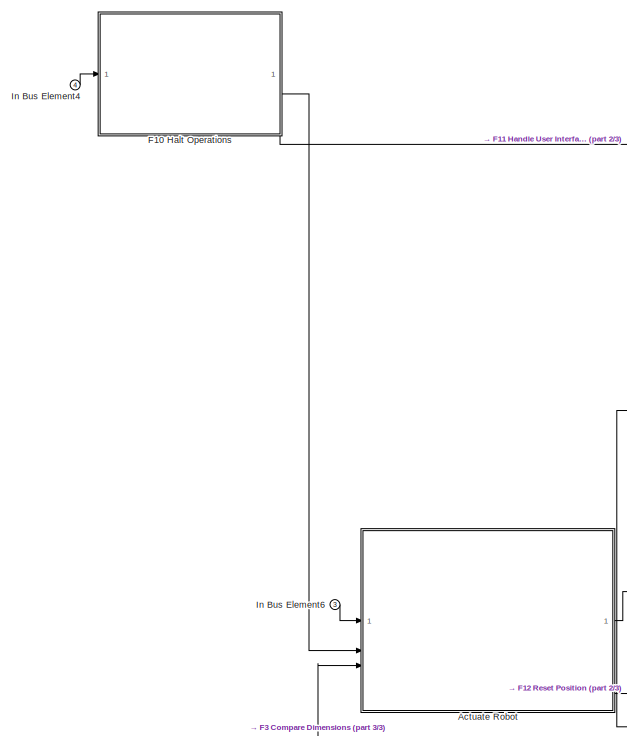
[diagram: root canvas - part 1/3, middle left region]
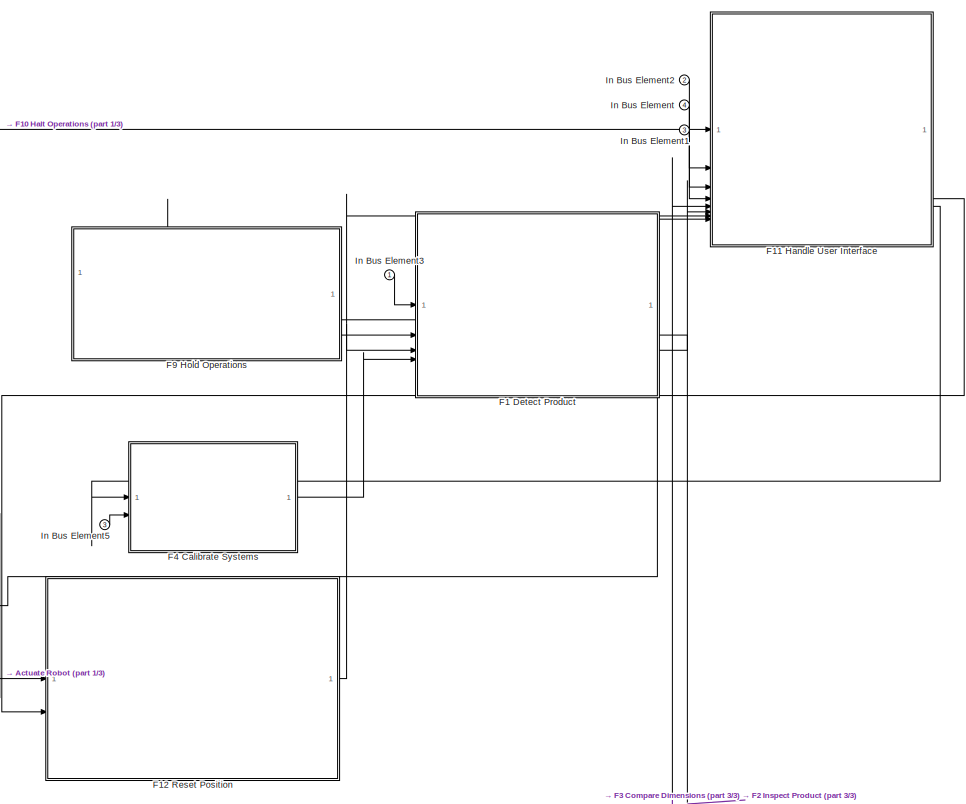
[diagram: root canvas - part 2/3, middle right region]
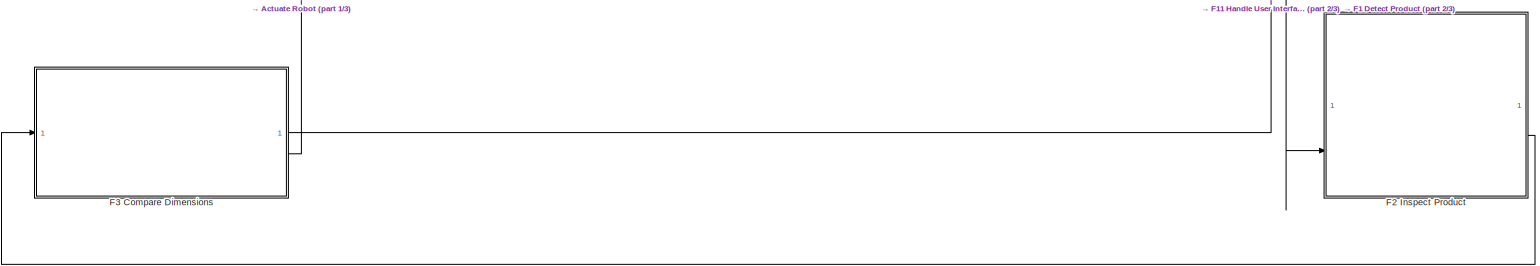
[diagram: root canvas - part 3/3, full width, bottom band]
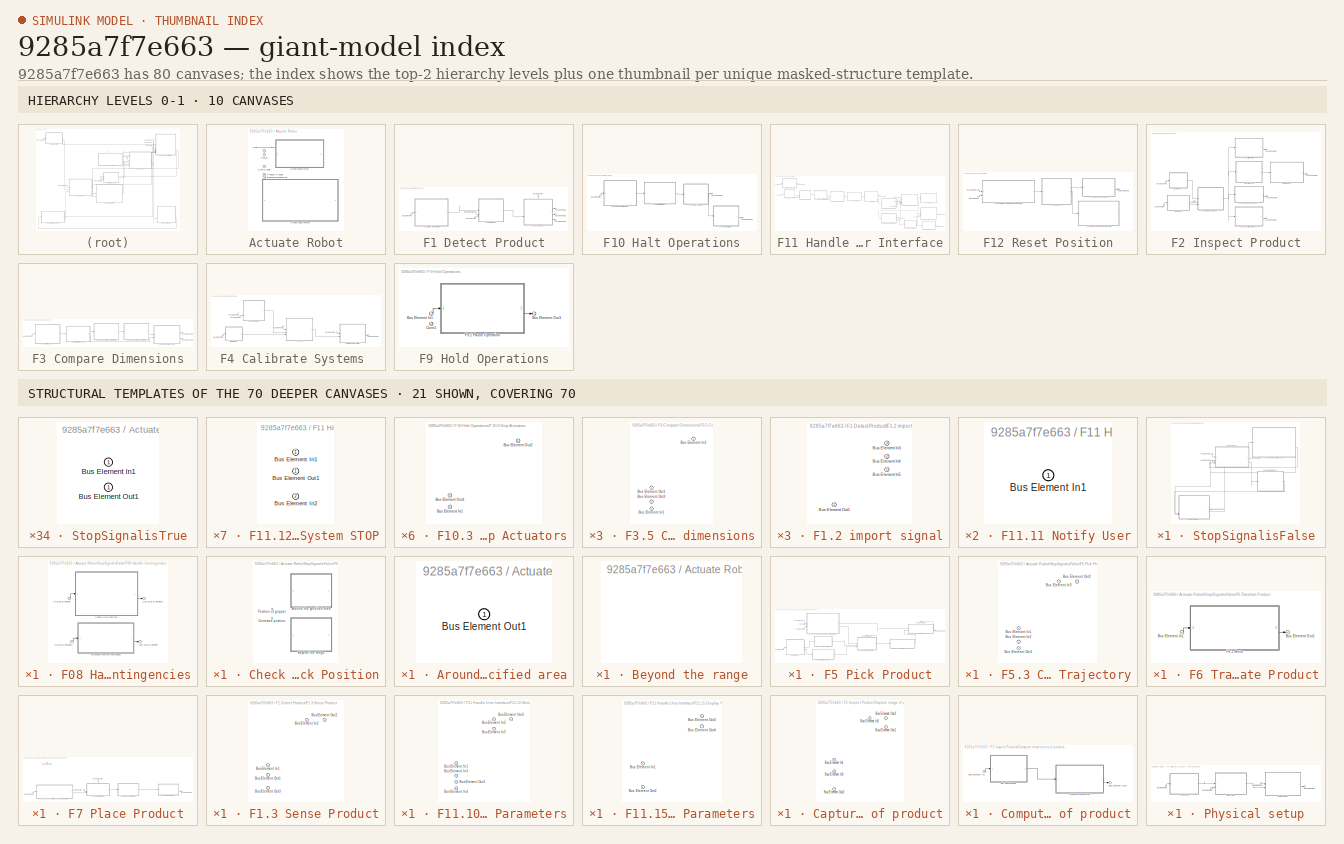
[diagram: thumbnail index - top-2 hierarchy levels (10 canvases) + 21 structural-template representatives of the remaining 70 canvases]
MODEL slx_9285a7f7e663
KIND model
CONFIG AbsTol = auto
CONFIG EnableMultiTasking = off
CONFIG FixedStep = auto
CONFIG MaxStep = auto
CONFIG MinStep = auto
CONFIG RelTol = 1e-3
CONFIG SampleTimeConstraint = Unconstrained
CONFIG SolverName = VariableStepAuto
CONFIG StartTime = 0.0
CONFIG StopTime = 10.0
BLOCK [SubSystem] Actuate Robot
  LabelModeActiveChoice = false
  PortSchema = {"entries":[{"content":{"headerSize":38,"margin":15,"minimumSpacing":25,"sides":[{"content":{"connectorIds":["In1","In2","In3"]},"type":"ConnectorPlacement.EquallySpacedRectSide","uuid":"801652fd-f6d1-4274-af0e-cb86f9305aea"},{"content":{"connectorIds":["Out1","Out2"],"side":"RIGHT"},"type":"ConnectorPlacement.EquallySpacedRectSide","uuid":"95203280-2c96-4067-b57a-d6395a07757b"},{"content":{"conne...<+307ch>
  Variant = on
  VariantControlMode = label
BLOCK [Inport] Actuate Robot/BeginpickOperation
  Port = 3
BLOCK [Outport] Actuate Robot/NotifySTOPStatus
BLOCK [Inport] Actuate Robot/Power
BLOCK [Outport] Actuate Robot/Product Placed
  Port = 2
BLOCK [Inport] Actuate Robot/Stop Signal
  Port = 2
BLOCK [SubSystem] Actuate Robot/StopSignalisFalse
  PortSchema = {"entries":[{"content":{"headerSize":26,"margin":15,"minimumSpacing":25,"sides":[{"content":{"connectorIds":["In1","In2"]},"type":"ConnectorPlacement.EquallySpacedRectSide","uuid":"48af5bc1-3520-4798-93f0-e999f4a2b359"},{"content":{"connectorIds":["Out1"],"side":"RIGHT"},"type":"ConnectorPlacement.EquallySpacedRectSide","uuid":"b080505c-f688-49a6-aa0b-291a70fb9613"},{"content":{"connectorIds":[],"...<+294ch>
  VariantControl = false
BLOCK [Inport] Actuate Robot/StopSignalisFalse/Bus Element In1
  Port = 2
BLOCK [Inport] Actuate Robot/StopSignalisFalse/Bus Element In2
BLOCK [Outport] Actuate Robot/StopSignalisFalse/Bus Element Out1
BLOCK [SubSystem] Actuate Robot/StopSignalisFalse/F08 Handle Contingencies
  PortSchema = {"entries":[{"content":{"headerSize":26,"margin":15,"minimumSpacing":25,"sides":[{"content":{"connectorIds":["In1","In2"]},"type":"ConnectorPlacement.EquallySpacedRectSide","uuid":"1c117138-a6d4-4ec0-b7b8-6d1428745998"},{"content":{"connectorIds":["Out1","Out2"],"side":"RIGHT"},"type":"ConnectorPlacement.EquallySpacedRectSide","uuid":"426d6ceb-18a6-42d8-9bd7-8fe69cb751f0"},{"content":{"connectorId...<+301ch>
BLOCK [SubSystem] Actuate Robot/StopSignalisFalse/F08 Handle Contingencies/Check Pick Position
  LabelModeActiveChoice = true
  PortSchema = {"entries":[{"content":{"headerSize":38,"margin":15,"minimumSpacing":25,"sides":[{"content":{"connectorIds":["In1"]},"type":"ConnectorPlacement.EquallySpacedRectSide","uuid":"82248304-a162-48ca-a47b-1ca98baf0c4b"},{"content":{"connectorIds":["Out1"],"side":"RIGHT"},"type":"ConnectorPlacement.EquallySpacedRectSide","uuid":"4a71fcf9-75ca-4fc2-a495-265b9c18be6e"},{"content":{"connectorIds":[],"side":...<+288ch>
  Variant = on
  VariantControlMode = label
BLOCK [SubSystem] Actuate Robot/StopSignalisFalse/F08 Handle Contingencies/Check Pick Position/Around the specified area
  PortSchema = {"entries":[{"content":{"headerSize":26,"margin":15,"minimumSpacing":25,"sides":[{"content":{"connectorIds":[]},"type":"ConnectorPlacement.EquallySpacedRectSide","uuid":"7245304e-b65d-462b-853e-3a80a6fffb1c"},{"content":{"connectorIds":["Out1"],"side":"RIGHT"},"type":"ConnectorPlacement.EquallySpacedRectSide","uuid":"9267bc47-a16a-4902-a507-692f8de66c88"},{"content":{"connectorIds":[],"side":"TOP"...<+283ch>
  VariantControl = true
BLOCK [Outport] Actuate Robot/StopSignalisFalse/F08 Handle Contingencies/Check Pick Position/Around the specified area/Bus Element Out1
BLOCK [SubSystem] Actuate Robot/StopSignalisFalse/F08 Handle Contingencies/Check Pick Position/Beyond the range
  PortSchema = {"entries":[{"content":{"headerSize":26,"margin":15,"minimumSpacing":25,"sides":[{"content":{"connectorIds":[]},"type":"ConnectorPlacement.EquallySpacedRectSide","uuid":"cfa9a458-ccb1-4b4b-9223-cdb6aaef5fc4"},{"content":{"connectorIds":[],"side":"RIGHT"},"type":"ConnectorPlacement.EquallySpacedRectSide","uuid":"f9e6f688-270f-46a5-8c07-32c6831cf3d3"},{"content":{"connectorIds":[],"side":"TOP"},"typ...<+277ch>
  VariantControl = Choice
BLOCK [Outport] Actuate Robot/StopSignalisFalse/F08 Handle Contingencies/Check Pick Position/Corrected position
BLOCK [Inport] Actuate Robot/StopSignalisFalse/F08 Handle Contingencies/Check Pick Position/Position of gripper
BLOCK [SubSystem] Actuate Robot/StopSignalisFalse/F08 Handle Contingencies/F8.1Weak force on the product
  PortSchema = {"entries":[{"content":{"headerSize":26,"margin":15,"minimumSpacing":25,"sides":[{"content":{"connectorIds":["In1"]},"type":"ConnectorPlacement.EquallySpacedRectSide","uuid":"cfa9a458-ccb1-4b4b-9223-cdb6aaef5fc4"},{"content":{"connectorIds":["Out1"],"side":"RIGHT"},"type":"ConnectorPlacement.EquallySpacedRectSide","uuid":"f9e6f688-270f-46a5-8c07-32c6831cf3d3"},{"content":{"connectorIds":[],"side":...<+288ch>
BLOCK [Inport] Actuate Robot/StopSignalisFalse/F08 Handle Contingencies/F8.1Weak force on the product/Bus Element In1
BLOCK [Outport] Actuate Robot/StopSignalisFalse/F08 Handle Contingencies/F8.1Weak force on the product/Bus Element Out1
BLOCK [Inport] Actuate Robot/StopSignalisFalse/F08 Handle Contingencies/In Bus Element
BLOCK [Inport] Actuate Robot/StopSignalisFalse/F08 Handle Contingencies/In Bus Element1
  Port = 2
BLOCK [Outport] Actuate Robot/StopSignalisFalse/F08 Handle Contingencies/Out Bus Element
  Port = 2
BLOCK [Outport] Actuate Robot/StopSignalisFalse/F08 Handle Contingencies/Out Bus Element1
BLOCK [SubSystem] Actuate Robot/StopSignalisFalse/F5 Pick Product
  PortSchema = {"entries":[{"content":{"headerSize":26,"margin":15,"minimumSpacing":25,"sides":[{"content":{"connectorIds":["In1","In2","In3","In4"]},"type":"ConnectorPlacement.EquallySpacedRectSide","uuid":"ce520cb7-ac6b-49f5-959a-43d0066e6af8"},{"content":{"connectorIds":["Out3"],"side":"RIGHT"},"type":"ConnectorPlacement.EquallySpacedRectSide","uuid":"785c5fb5-eec3-4a9f-be3c-47cdb1865e9b"},{"content":{"connec...<+319ch>
BLOCK [SubSystem] Actuate Robot/StopSignalisFalse/F5 Pick Product/Begin Task
  PortSchema = {"entries":[{"content":{"headerSize":26,"margin":15,"minimumSpacing":25,"sides":[{"content":{"connectorIds":["In1"]},"type":"ConnectorPlacement.EquallySpacedRectSide","uuid":"ae240f5f-39ed-41a3-b9a8-bf2f33b986be"},{"content":{"connectorIds":["Out1","Out2"],"side":"RIGHT"},"type":"ConnectorPlacement.EquallySpacedRectSide","uuid":"44ba199a-fd12-4621-8565-f3f1adedec4a"},{"content":{"connectorIds":[],...<+295ch>
BLOCK [Inport] Actuate Robot/StopSignalisFalse/F5 Pick Product/Begin Task/Bus Element In1
BLOCK [Outport] Actuate Robot/StopSignalisFalse/F5 Pick Product/Begin Task/Bus Element Out1
BLOCK [Outport] Actuate Robot/StopSignalisFalse/F5 Pick Product/Begin Task/Bus Element Out2
  Port = 2
BLOCK [Inport] Actuate Robot/StopSignalisFalse/F5 Pick Product/Bus Element In1
BLOCK [Inport] Actuate Robot/StopSignalisFalse/F5 Pick Product/Bus Element In2
  Port = 2
BLOCK [Inport] Actuate Robot/StopSignalisFalse/F5 Pick Product/Bus Element In3
  Port = 4
BLOCK [Inport] Actuate Robot/StopSignalisFalse/F5 Pick Product/Bus Element In4
  Port = 3
BLOCK [Outport] Actuate Robot/StopSignalisFalse/F5 Pick Product/Bus Element Out1
  Port = 3
BLOCK [Outport] Actuate Robot/StopSignalisFalse/F5 Pick Product/Bus Element Out3
BLOCK [Outport] Actuate Robot/StopSignalisFalse/F5 Pick Product/Bus Element Out4
  Port = 2
BLOCK [SubSystem] Actuate Robot/StopSignalisFalse/F5 Pick Product/F5.1 Accept Coordinates
  PortSchema = {"entries":[{"content":{"headerSize":26,"margin":15,"minimumSpacing":25,"sides":[{"content":{"connectorIds":["In1"]},"type":"ConnectorPlacement.EquallySpacedRectSide","uuid":"ce520cb7-ac6b-49f5-959a-43d0066e6af8"},{"content":{"connectorIds":["Out1"],"side":"RIGHT"},"type":"ConnectorPlacement.EquallySpacedRectSide","uuid":"785c5fb5-eec3-4a9f-be3c-47cdb1865e9b"},{"content":{"connectorIds":[],"side":...<+288ch>  <repeated x8 — deduplicated; at blocks: F5.1 Accept Coordinates, F5.2 Import Orientation of Product, F5.5 Move the Gripper towards Product, F6 Translate Product, F6.1 Move, F7.1 Check and Verify force and position of Gri…, F7.3 Release the Gripper, F7.4 Raise the Gripper>
BLOCK [Inport] Actuate Robot/StopSignalisFalse/F5 Pick Product/F5.1 Accept Coordinates/Bus Element In1
BLOCK [Outport] Actuate Robot/StopSignalisFalse/F5 Pick Product/F5.1 Accept Coordinates/Bus Element Out1
BLOCK [SubSystem] Actuate Robot/StopSignalisFalse/F5 Pick Product/F5.2 Import Orientation of Product
BLOCK [Inport] Actuate Robot/StopSignalisFalse/F5 Pick Product/F5.2 Import Orientation of Product/Bus Element In1
BLOCK [Outport] Actuate Robot/StopSignalisFalse/F5 Pick Product/F5.2 Import Orientation of Product/Bus Element Out1
BLOCK [SubSystem] Actuate Robot/StopSignalisFalse/F5 Pick Product/F5.3 Compute Trajectory
  PortSchema = {"entries":[{"content":{"headerSize":26,"margin":15,"minimumSpacing":25,"sides":[{"content":{"connectorIds":["In1","In2","In3"]},"type":"ConnectorPlacement.EquallySpacedRectSide","uuid":"ce520cb7-ac6b-49f5-959a-43d0066e6af8"},{"content":{"connectorIds":["Out2"],"side":"RIGHT"},"type":"ConnectorPlacement.EquallySpacedRectSide","uuid":"785c5fb5-eec3-4a9f-be3c-47cdb1865e9b"},{"content":{"connectorIds...<+306ch>
BLOCK [Inport] Actuate Robot/StopSignalisFalse/F5 Pick Product/F5.3 Compute Trajectory/Bus Element In1
  Port = 2
BLOCK [Inport] Actuate Robot/StopSignalisFalse/F5 Pick Product/F5.3 Compute Trajectory/Bus Element In2
  Port = 3
BLOCK [Inport] Actuate Robot/StopSignalisFalse/F5 Pick Product/F5.3 Compute Trajectory/Bus Element In3
BLOCK [Outport] Actuate Robot/StopSignalisFalse/F5 Pick Product/F5.3 Compute Trajectory/Bus Element Out1
  Port = 2
BLOCK [Outport] Actuate Robot/StopSignalisFalse/F5 Pick Product/F5.3 Compute Trajectory/Bus Element Out2
BLOCK [SubSystem] Actuate Robot/StopSignalisFalse/F5 Pick Product/F5.4 Check and Verify Force and Position of Gripper
  PortSchema = {"entries":[{"content":{"headerSize":26,"margin":15,"minimumSpacing":25,"sides":[{"content":{"connectorIds":["In1","In2"]},"type":"ConnectorPlacement.EquallySpacedRectSide","uuid":"ce520cb7-ac6b-49f5-959a-43d0066e6af8"},{"content":{"connectorIds":["Out1","Out2"],"side":"RIGHT"},"type":"ConnectorPlacement.EquallySpacedRectSide","uuid":"785c5fb5-eec3-4a9f-be3c-47cdb1865e9b"},{"content":{"connectorId...<+445ch>
BLOCK [Inport] Actuate Robot/StopSignalisFalse/F5 Pick Product/F5.4 Check and Verify Force and Position of Gripper/Bus Element In1
BLOCK [Inport] Actuate Robot/StopSignalisFalse/F5 Pick Product/F5.4 Check and Verify Force and Position of Gripper/Bus Element In2
  Port = 2
BLOCK [Outport] Actuate Robot/StopSignalisFalse/F5 Pick Product/F5.4 Check and Verify Force and Position of Gripper/Bus Element Out1
  Port = 2
BLOCK [Outport] Actuate Robot/StopSignalisFalse/F5 Pick Product/F5.4 Check and Verify Force and Position of Gripper/Bus Element Out2
BLOCK [SubSystem] Actuate Robot/StopSignalisFalse/F5 Pick Product/F5.5 Move the Gripper towards Product
BLOCK [Inport] Actuate Robot/StopSignalisFalse/F5 Pick Product/F5.5 Move the Gripper towards Product/Bus Element In1
BLOCK [Outport] Actuate Robot/StopSignalisFalse/F5 Pick Product/F5.5 Move the Gripper towards Product/Bus Element Out1
BLOCK [SubSystem] Actuate Robot/StopSignalisFalse/F5 Pick Product/F5.6 Activate Gripper
  PortSchema = {"entries":[{"content":{"headerSize":26,"margin":15,"minimumSpacing":25,"sides":[{"content":{"connectorIds":["In1","In2"]},"type":"ConnectorPlacement.EquallySpacedRectSide","uuid":"ce520cb7-ac6b-49f5-959a-43d0066e6af8"},{"content":{"connectorIds":["Out2"],"side":"RIGHT"},"type":"ConnectorPlacement.EquallySpacedRectSide","uuid":"785c5fb5-eec3-4a9f-be3c-47cdb1865e9b"},{"content":{"connectorIds":["Ou...<+300ch>
BLOCK [Inport] Actuate Robot/StopSignalisFalse/F5 Pick Product/F5.6 Activate Gripper/Bus Element In1
  Port = 2
BLOCK [Inport] Actuate Robot/StopSignalisFalse/F5 Pick Product/F5.6 Activate Gripper/Bus Element In2
BLOCK [Outport] Actuate Robot/StopSignalisFalse/F5 Pick Product/F5.6 Activate Gripper/Bus Element Out1
  Port = 2
BLOCK [Outport] Actuate Robot/StopSignalisFalse/F5 Pick Product/F5.6 Activate Gripper/Bus Element Out2
BLOCK [SubSystem] Actuate Robot/StopSignalisFalse/F6 Translate Product
BLOCK [Inport] Actuate Robot/StopSignalisFalse/F6 Translate Product/Bus Element In1
BLOCK [Outport] Actuate Robot/StopSignalisFalse/F6 Translate Product/Bus Element Out1
BLOCK [SubSystem] Actuate Robot/StopSignalisFalse/F6 Translate Product/F6.1 Move
BLOCK [Inport] Actuate Robot/StopSignalisFalse/F6 Translate Product/F6.1 Move/Bus Element In1
BLOCK [Outport] Actuate Robot/StopSignalisFalse/F6 Translate Product/F6.1 Move/Bus Element Out1
BLOCK [SubSystem] Actuate Robot/StopSignalisFalse/F7 Place Product
  PortSchema = {"entries":[{"content":{"headerSize":26,"margin":15,"minimumSpacing":25,"sides":[{"content":{"connectorIds":["In4","In3"]},"type":"ConnectorPlacement.EquallySpacedRectSide","uuid":"ce520cb7-ac6b-49f5-959a-43d0066e6af8"},{"content":{"connectorIds":["Out1"],"side":"RIGHT"},"type":"ConnectorPlacement.EquallySpacedRectSide","uuid":"785c5fb5-eec3-4a9f-be3c-47cdb1865e9b"},{"content":{"connectorIds":["In...<+305ch>
BLOCK [Inport] Actuate Robot/StopSignalisFalse/F7 Place Product/Bus Element In1
  Port = 3
BLOCK [Inport] Actuate Robot/StopSignalisFalse/F7 Place Product/Bus Element In2
  Port = 4
BLOCK [Inport] Actuate Robot/StopSignalisFalse/F7 Place Product/Bus Element In3
  Port = 2
BLOCK [Inport] Actuate Robot/StopSignalisFalse/F7 Place Product/Bus Element In4
BLOCK [Outport] Actuate Robot/StopSignalisFalse/F7 Place Product/Bus Element Out1
BLOCK [SubSystem] Actuate Robot/StopSignalisFalse/F7 Place Product/F7.1 Check and Verify force and position of Gripper
BLOCK [Inport] Actuate Robot/StopSignalisFalse/F7 Place Product/F7.1 Check and Verify force and position of Gripper/Bus Element In1
BLOCK [Outport] Actuate Robot/StopSignalisFalse/F7 Place Product/F7.1 Check and Verify force and position of Gripper/Bus Element Out1
BLOCK [SubSystem] Actuate Robot/StopSignalisFalse/F7 Place Product/F7.2 Lower the Gripper
  PortSchema = {"entries":[{"content":{"headerSize":26,"margin":15,"minimumSpacing":25,"sides":[{"content":{"connectorIds":["In2","In3"]},"type":"ConnectorPlacement.EquallySpacedRectSide","uuid":"ce520cb7-ac6b-49f5-959a-43d0066e6af8"},{"content":{"connectorIds":["Out1"],"side":"RIGHT"},"type":"ConnectorPlacement.EquallySpacedRectSide","uuid":"785c5fb5-eec3-4a9f-be3c-47cdb1865e9b"},{"content":{"connectorIds":["In...<+299ch>
BLOCK [Inport] Actuate Robot/StopSignalisFalse/F7 Place Product/F7.2 Lower the Gripper/Bus Element In1
  Port = 2
BLOCK [Inport] Actuate Robot/StopSignalisFalse/F7 Place Product/F7.2 Lower the Gripper/Bus Element In2
  Port = 3
BLOCK [Inport] Actuate Robot/StopSignalisFalse/F7 Place Product/F7.2 Lower the Gripper/Bus Element In3
BLOCK [Outport] Actuate Robot/StopSignalisFalse/F7 Place Product/F7.2 Lower the Gripper/Bus Element Out1
BLOCK [SubSystem] Actuate Robot/StopSignalisFalse/F7 Place Product/F7.3 Release the Gripper
BLOCK [Inport] Actuate Robot/StopSignalisFalse/F7 Place Product/F7.3 Release the Gripper/Bus Element In1
BLOCK [Outport] Actuate Robot/StopSignalisFalse/F7 Place Product/F7.3 Release the Gripper/Bus Element Out1
BLOCK [SubSystem] Actuate Robot/StopSignalisFalse/F7 Place Product/F7.4 Raise the Gripper
BLOCK [Inport] Actuate Robot/StopSignalisFalse/F7 Place Product/F7.4 Raise the Gripper/Bus Element In1
BLOCK [Outport] Actuate Robot/StopSignalisFalse/F7 Place Product/F7.4 Raise the Gripper/Bus Element Out1
BLOCK [SubSystem] Actuate Robot/StopSignalisTrue
  PortSchema = {"entries":[{"content":{"headerSize":26,"margin":15,"minimumSpacing":25,"sides":[{"content":{"connectorIds":["In1"]},"type":"ConnectorPlacement.EquallySpacedRectSide","uuid":"48af5bc1-3520-4798-93f0-e999f4a2b359"},{"content":{"connectorIds":["Out1"],"side":"RIGHT"},"type":"ConnectorPlacement.EquallySpacedRectSide","uuid":"b080505c-f688-49a6-aa0b-291a70fb9613"},{"content":{"connectorIds":[],"side":...<+288ch>
  VariantControl = true
BLOCK [Inport] Actuate Robot/StopSignalisTrue/Bus Element In1
BLOCK [Outport] Actuate Robot/StopSignalisTrue/Bus Element Out1
BLOCK [SubSystem] F1 Detect Product
  PortSchema = {"entries":[{"content":{"headerSize":26,"margin":15,"minimumSpacing":25,"sides":[{"content":{"connectorIds":["In1","In2","In3","In4"]},"type":"ConnectorPlacement.EquallySpacedRectSide","uuid":"0eb90d47-70e1-4803-9acf-c665eca2c33b"},{"content":{"connectorIds":["Out2","Out3"],"side":"RIGHT"},"type":"ConnectorPlacement.EquallySpacedRectSide","uuid":"4ca2a7b5-05ae-49c5-bdeb-54cebcfbfa14"},{"content":{...<+463ch>
BLOCK [Inport] F1 Detect Product/Bus Element In3
  Port = 3
BLOCK [Inport] F1 Detect Product/Bus Element In4
BLOCK [Inport] F1 Detect Product/Bus Element In5
  Port = 2
BLOCK [Inport] F1 Detect Product/Bus Element In7
  Port = 4
BLOCK [Outport] F1 Detect Product/Bus Element Out1
  Port = 3
BLOCK [Outport] F1 Detect Product/Bus Element Out2
  Port = 2
BLOCK [Outport] F1 Detect Product/Bus Element Out3
BLOCK [SubSystem] F1 Detect Product/F1.1 Confirm System Calibration
  PortSchema = {"entries":[{"content":{"headerSize":26,"margin":15,"minimumSpacing":25,"sides":[{"content":{"connectorIds":["In1"]},"type":"ConnectorPlacement.EquallySpacedRectSide","uuid":"ae240f5f-39ed-41a3-b9a8-bf2f33b986be"},{"content":{"connectorIds":["Out1"],"side":"RIGHT"},"type":"ConnectorPlacement.EquallySpacedRectSide","uuid":"44ba199a-fd12-4621-8565-f3f1adedec4a"},{"content":{"connectorIds":[],"side":...<+288ch>
BLOCK [Inport] F1 Detect Product/F1.1 Confirm System Calibration/Bus Element In2
BLOCK [Outport] F1 Detect Product/F1.1 Confirm System Calibration/Bus Element Out1
BLOCK [SubSystem] F1 Detect Product/F1.2 import signal
  PortSchema = {"entries":[{"content":{"headerSize":26,"margin":15,"minimumSpacing":25,"sides":[{"content":{"connectorIds":["In1","In2","In3"]},"type":"ConnectorPlacement.EquallySpacedRectSide","uuid":"ee97644e-c9ff-4946-8a58-fee1d557a4ad"},{"content":{"connectorIds":["Out1"],"side":"RIGHT"},"type":"ConnectorPlacement.EquallySpacedRectSide","uuid":"e20fd496-d0ba-45f7-949d-94f28912a261"},{"content":{"connectorIds...<+300ch>
BLOCK [Inport] F1 Detect Product/F1.2 import signal/Bus Element In3
  Port = 3
BLOCK [Inport] F1 Detect Product/F1.2 import signal/Bus Element In4
  Port = 2
BLOCK [Inport] F1 Detect Product/F1.2 import signal/Bus Element In5
BLOCK [Outport] F1 Detect Product/F1.2 import signal/Bus Element Out1
BLOCK [SubSystem] F1 Detect Product/F1.3 Sense Product
  PortSchema = {"entries":[{"content":{"headerSize":26,"margin":15,"minimumSpacing":25,"sides":[{"content":{"connectorIds":["In2"]},"type":"ConnectorPlacement.EquallySpacedRectSide","uuid":"ee97644e-c9ff-4946-8a58-fee1d557a4ad"},{"content":{"connectorIds":["Out1","Out2","Out3"],"side":"RIGHT"},"type":"ConnectorPlacement.EquallySpacedRectSide","uuid":"e20fd496-d0ba-45f7-949d-94f28912a261"},{"content":{"connectorI...<+307ch>
BLOCK [Inport] F1 Detect Product/F1.3 Sense Product/Bus Element In1
  Port = 2
BLOCK [Inport] F1 Detect Product/F1.3 Sense Product/Bus Element In2
BLOCK [Outport] F1 Detect Product/F1.3 Sense Product/Bus Element Out1
  Port = 2
BLOCK [Outport] F1 Detect Product/F1.3 Sense Product/Bus Element Out2
BLOCK [Outport] F1 Detect Product/F1.3 Sense Product/Bus Element Out3
  Port = 3
BLOCK [SubSystem] F10 Halt Operations
  PortSchema = {"entries":[{"content":{"headerSize":26,"margin":15,"minimumSpacing":25,"sides":[{"content":{"connectorIds":["In1"]},"type":"ConnectorPlacement.EquallySpacedRectSide","uuid":"0eb90d47-70e1-4803-9acf-c665eca2c33b"},{"content":{"connectorIds":["Out1","Out2"],"side":"RIGHT"},"type":"ConnectorPlacement.EquallySpacedRectSide","uuid":"4ca2a7b5-05ae-49c5-bdeb-54cebcfbfa14"},{"content":{"connectorIds":[],...<+295ch>  <repeated x4 — deduplicated; at blocks: F10 Halt Operations, F11.14 Update Activity Log, F11.7 Confirm Login, F3 Compare Dimensions>
BLOCK [Inport] F10 Halt Operations/Bus Element In1
BLOCK [Outport] F10 Halt Operations/Bus Element Out1
  Port = 2
BLOCK [Outport] F10 Halt Operations/Bus Element Out2
BLOCK [SubSystem] F10 Halt Operations/F10.1 Recieve Button Input
  PortSchema = {"entries":[{"content":{"headerSize":26,"margin":15,"minimumSpacing":25,"sides":[{"content":{"connectorIds":["In1"]},"type":"ConnectorPlacement.EquallySpacedRectSide","uuid":"7013333b-bcb0-472a-8b4b-201a684e0f69"},{"content":{"connectorIds":["Out1"],"side":"RIGHT"},"type":"ConnectorPlacement.EquallySpacedRectSide","uuid":"4b4cc890-b976-4837-92a8-5b6c4ad3f659"},{"content":{"connectorIds":[],"side":...<+288ch>  <repeated x6 — deduplicated; at blocks: F10.1 Recieve Button Input, F10.2 Interpret Input, F10.4 Export Signal, F3.1 Import Dimension, F3.3 Request dimensions from DB, F3.4 Recieve Dimensions from DB>
BLOCK [Inport] F10 Halt Operations/F10.1 Recieve Button Input/Bus Element In1
BLOCK [Outport] F10 Halt Operations/F10.1 Recieve Button Input/Bus Element Out1
BLOCK [SubSystem] F10 Halt Operations/F10.2 Interpret Input
BLOCK [Inport] F10 Halt Operations/F10.2 Interpret Input/Bus Element In1
BLOCK [Outport] F10 Halt Operations/F10.2 Interpret Input/Bus Element Out1
BLOCK [SubSystem] F10 Halt Operations/F10.3 Stop Actuators
  PortSchema = {"entries":[{"content":{"headerSize":26,"margin":15,"minimumSpacing":25,"sides":[{"content":{"connectorIds":["In1"]},"type":"ConnectorPlacement.EquallySpacedRectSide","uuid":"7013333b-bcb0-472a-8b4b-201a684e0f69"},{"content":{"connectorIds":["Out2","Out1"],"side":"RIGHT"},"type":"ConnectorPlacement.EquallySpacedRectSide","uuid":"4b4cc890-b976-4837-92a8-5b6c4ad3f659"},{"content":{"connectorIds":[],...<+295ch>
BLOCK [Inport] F10 Halt Operations/F10.3 Stop Actuators/Bus Element In1
BLOCK [Outport] F10 Halt Operations/F10.3 Stop Actuators/Bus Element Out1
  Port = 2
BLOCK [Outport] F10 Halt Operations/F10.3 Stop Actuators/Bus Element Out2
BLOCK [SubSystem] F10 Halt Operations/F10.4 Export Signal
BLOCK [Inport] F10 Halt Operations/F10.4 Export Signal/Bus Element In1
BLOCK [Outport] F10 Halt Operations/F10.4 Export Signal/Bus Element Out1
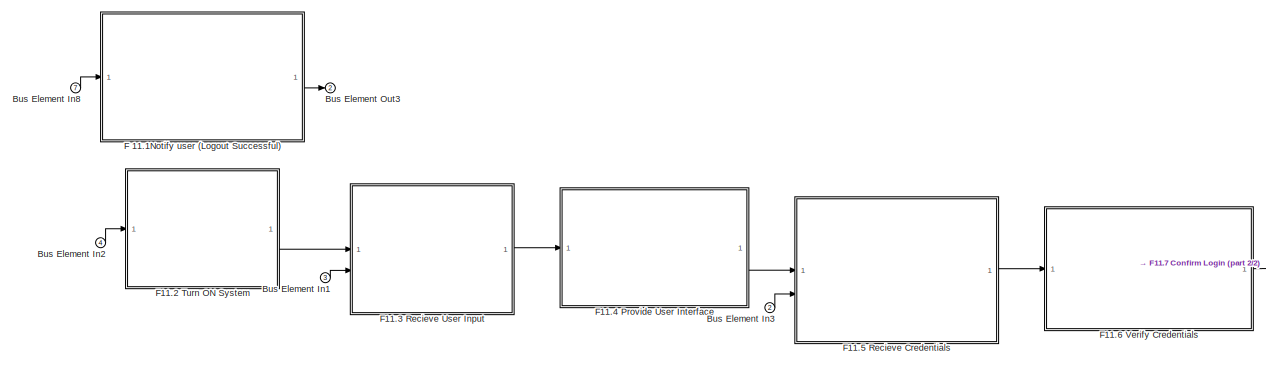
[diagram: F11 Handle User Interface - part 1/2, top left region]
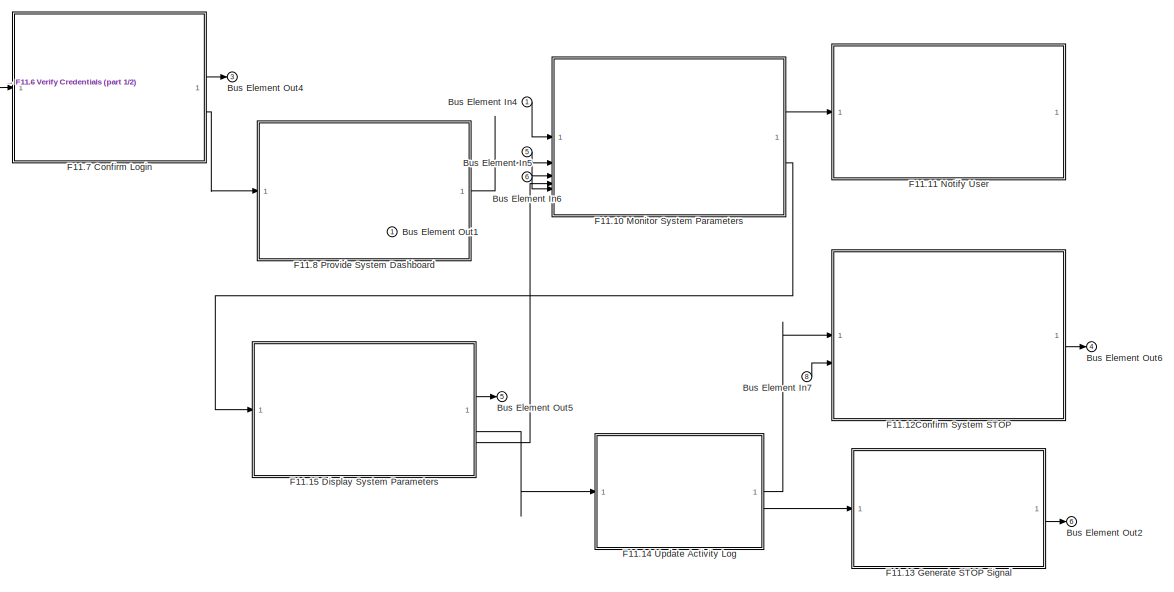
[diagram: F11 Handle User Interface - part 2/2, right side, full height]
BLOCK [SubSystem] F11 Handle User Interface
  PortSchema = {"entries":[{"content":{"headerSize":26,"margin":15,"minimumSpacing":25,"sides":[{"content":{"connectorIds":["In1","In2","In3","In4","In5","In6","In7","In8"]},"type":"ConnectorPlacement.EquallySpacedRectSide","uuid":"0eb90d47-70e1-4803-9acf-c665eca2c33b"},{"content":{"connectorIds":["Out1","Out2","Out3","Out5","Out6","Out4"],"side":"RIGHT"},"type":"ConnectorPlacement.EquallySpacedRectSide","uuid":...<+365ch>
BLOCK [Inport] F11 Handle User Interface/Bus Element In1
  Port = 3
BLOCK [Inport] F11 Handle User Interface/Bus Element In2
  Port = 4
BLOCK [Inport] F11 Handle User Interface/Bus Element In3
  Port = 2
BLOCK [Inport] F11 Handle User Interface/Bus Element In4
BLOCK [Inport] F11 Handle User Interface/Bus Element In5
  Port = 5
BLOCK [Inport] F11 Handle User Interface/Bus Element In6
  Port = 6
BLOCK [Inport] F11 Handle User Interface/Bus Element In7
  Port = 8
BLOCK [Inport] F11 Handle User Interface/Bus Element In8
  Port = 7
BLOCK [Outport] F11 Handle User Interface/Bus Element Out1
BLOCK [Outport] F11 Handle User Interface/Bus Element Out2
  Port = 6
BLOCK [Outport] F11 Handle User Interface/Bus Element Out3
  Port = 2
BLOCK [Outport] F11 Handle User Interface/Bus Element Out4
  Port = 3
BLOCK [Outport] F11 Handle User Interface/Bus Element Out5
  Port = 5
BLOCK [Outport] F11 Handle User Interface/Bus Element Out6
  Port = 4
BLOCK [SubSystem] F11 Handle User Interface/F 11.1Notify user (Logout Successful)
  PortSchema = {"entries":[{"content":{"headerSize":26,"margin":15,"minimumSpacing":25,"sides":[{"content":{"connectorIds":["In1"]},"type":"ConnectorPlacement.EquallySpacedRectSide","uuid":"ae240f5f-39ed-41a3-b9a8-bf2f33b986be"},{"content":{"connectorIds":["Out1"],"side":"RIGHT"},"type":"ConnectorPlacement.EquallySpacedRectSide","uuid":"44ba199a-fd12-4621-8565-f3f1adedec4a"},{"content":{"connectorIds":[],"side":...<+288ch>
BLOCK [Inport] F11 Handle User Interface/F 11.1Notify user (Logout Successful)/Bus Element In1
BLOCK [Outport] F11 Handle User Interface/F 11.1Notify user (Logout Successful)/Bus Element Out1
BLOCK [SubSystem] F11 Handle User Interface/F11.10 Monitor System Parameters
  PortSchema = {"entries":[{"content":{"headerSize":26,"margin":15,"minimumSpacing":25,"sides":[{"content":{"connectorIds":["In1","In2","In3","In5","In4"]},"type":"ConnectorPlacement.EquallySpacedRectSide","uuid":"0eb90d47-70e1-4803-9acf-c665eca2c33b"},{"content":{"connectorIds":["Out1","Out2"],"side":"RIGHT"},"type":"ConnectorPlacement.EquallySpacedRectSide","uuid":"4ca2a7b5-05ae-49c5-bdeb-54cebcfbfa14"},{"cont...<+319ch>
BLOCK [Inport] F11 Handle User Interface/F11.10 Monitor System Parameters/Bus Element In1
  Port = 2
BLOCK [Inport] F11 Handle User Interface/F11.10 Monitor System Parameters/Bus Element In2
BLOCK [Inport] F11 Handle User Interface/F11.10 Monitor System Parameters/Bus Element In3
  Port = 3
BLOCK [Inport] F11 Handle User Interface/F11.10 Monitor System Parameters/Bus Element In4
  Port = 5
BLOCK [Inport] F11 Handle User Interface/F11.10 Monitor System Parameters/Bus Element In5
  Port = 4
BLOCK [Outport] F11 Handle User Interface/F11.10 Monitor System Parameters/Bus Element Out1
  Port = 2
BLOCK [Outport] F11 Handle User Interface/F11.10 Monitor System Parameters/Bus Element Out2
BLOCK [SubSystem] F11 Handle User Interface/F11.11 Notify User
  PortSchema = {"entries":[{"content":{"headerSize":26,"margin":15,"minimumSpacing":25,"sides":[{"content":{"connectorIds":["In1"]},"type":"ConnectorPlacement.EquallySpacedRectSide","uuid":"0eb90d47-70e1-4803-9acf-c665eca2c33b"},{"content":{"connectorIds":[],"side":"RIGHT"},"type":"ConnectorPlacement.EquallySpacedRectSide","uuid":"4ca2a7b5-05ae-49c5-bdeb-54cebcfbfa14"},{"content":{"connectorIds":[],"side":"TOP"}...<+282ch>
BLOCK [Inport] F11 Handle User Interface/F11.11 Notify User/Bus Element In1
BLOCK [SubSystem] F11 Handle User Interface/F11.12Confirm System STOP
  PortSchema = {"entries":[{"content":{"headerSize":26,"margin":15,"minimumSpacing":25,"sides":[{"content":{"connectorIds":["In1","In2"]},"type":"ConnectorPlacement.EquallySpacedRectSide","uuid":"ae240f5f-39ed-41a3-b9a8-bf2f33b986be"},{"content":{"connectorIds":["Out1"],"side":"RIGHT"},"type":"ConnectorPlacement.EquallySpacedRectSide","uuid":"44ba199a-fd12-4621-8565-f3f1adedec4a"},{"content":{"connectorIds":[],"...<+294ch>
BLOCK [Inport] F11 Handle User Interface/F11.12Confirm System STOP/Bus Element In1
BLOCK [Inport] F11 Handle User Interface/F11.12Confirm System STOP/Bus Element In2
  Port = 2
BLOCK [Outport] F11 Handle User Interface/F11.12Confirm System STOP/Bus Element Out1
BLOCK [SubSystem] F11 Handle User Interface/F11.13 Generate STOP Signal
  PortSchema = {"entries":[{"content":{"headerSize":26,"margin":15,"minimumSpacing":25,"sides":[{"content":{"connectorIds":["In1"]},"type":"ConnectorPlacement.EquallySpacedRectSide","uuid":"0eb90d47-70e1-4803-9acf-c665eca2c33b"},{"content":{"connectorIds":["Out1"],"side":"RIGHT"},"type":"ConnectorPlacement.EquallySpacedRectSide","uuid":"4ca2a7b5-05ae-49c5-bdeb-54cebcfbfa14"},{"content":{"connectorIds":[],"side":...<+288ch>  <repeated x5 — deduplicated; at blocks: F11.13 Generate STOP Signal, F11.2 Turn ON System, F11.4 Provide User Interface, F11.6 Verify Credentials, F11.8 Provide System Dashboard>
BLOCK [Inport] F11 Handle User Interface/F11.13 Generate STOP Signal/Bus Element In1
BLOCK [Outport] F11 Handle User Interface/F11.13 Generate STOP Signal/Bus Element Out1
BLOCK [SubSystem] F11 Handle User Interface/F11.14 Update Activity Log
BLOCK [Inport] F11 Handle User Interface/F11.14 Update Activity Log/Bus Element In1
BLOCK [Outport] F11 Handle User Interface/F11.14 Update Activity Log/Bus Element Out1
BLOCK [Outport] F11 Handle User Interface/F11.14 Update Activity Log/Bus Element Out2
  Port = 2
BLOCK [SubSystem] F11 Handle User Interface/F11.15 Display System Parameters
  PortSchema = {"entries":[{"content":{"headerSize":26,"margin":15,"minimumSpacing":25,"sides":[{"content":{"connectorIds":["In1"]},"type":"ConnectorPlacement.EquallySpacedRectSide","uuid":"0eb90d47-70e1-4803-9acf-c665eca2c33b"},{"content":{"connectorIds":["Out1","Out2","Out3"],"side":"RIGHT"},"type":"ConnectorPlacement.EquallySpacedRectSide","uuid":"4ca2a7b5-05ae-49c5-bdeb-54cebcfbfa14"},{"content":{"connectorI...<+302ch>
BLOCK [Inport] F11 Handle User Interface/F11.15 Display System Parameters/Bus Element In1
BLOCK [Outport] F11 Handle User Interface/F11.15 Display System Parameters/Bus Element Out2
  Port = 3
BLOCK [Outport] F11 Handle User Interface/F11.15 Display System Parameters/Bus Element Out3
  Port = 2
BLOCK [Outport] F11 Handle User Interface/F11.15 Display System Parameters/Bus Element Out4
BLOCK [SubSystem] F11 Handle User Interface/F11.2 Turn ON System
BLOCK [Inport] F11 Handle User Interface/F11.2 Turn ON System/Bus Element In1
BLOCK [Outport] F11 Handle User Interface/F11.2 Turn ON System/Bus Element Out1
BLOCK [SubSystem] F11 Handle User Interface/F11.3 Recieve User Input
  PortSchema = {"entries":[{"content":{"headerSize":26,"margin":15,"minimumSpacing":25,"sides":[{"content":{"connectorIds":["In1","In2"]},"type":"ConnectorPlacement.EquallySpacedRectSide","uuid":"0eb90d47-70e1-4803-9acf-c665eca2c33b"},{"content":{"connectorIds":["Out1"],"side":"RIGHT"},"type":"ConnectorPlacement.EquallySpacedRectSide","uuid":"4ca2a7b5-05ae-49c5-bdeb-54cebcfbfa14"},{"content":{"connectorIds":[],"...<+294ch>  <repeated x3 — deduplicated; at blocks: F11.3 Recieve User Input, F11.5 Recieve Credentials, F4 Calibrate Systems>
BLOCK [Inport] F11 Handle User Interface/F11.3 Recieve User Input/Bus Element In1
BLOCK [Inport] F11 Handle User Interface/F11.3 Recieve User Input/Bus Element In2
  Port = 2
BLOCK [Outport] F11 Handle User Interface/F11.3 Recieve User Input/Bus Element Out1
BLOCK [SubSystem] F11 Handle User Interface/F11.4 Provide User Interface
BLOCK [Inport] F11 Handle User Interface/F11.4 Provide User Interface/Bus Element In1
BLOCK [Outport] F11 Handle User Interface/F11.4 Provide User Interface/Bus Element Out1
BLOCK [SubSystem] F11 Handle User Interface/F11.5 Recieve Credentials
BLOCK [Inport] F11 Handle User Interface/F11.5 Recieve Credentials/Bus Element In1
BLOCK [Inport] F11 Handle User Interface/F11.5 Recieve Credentials/Bus Element In2
  Port = 2
BLOCK [Outport] F11 Handle User Interface/F11.5 Recieve Credentials/Bus Element Out1
BLOCK [SubSystem] F11 Handle User Interface/F11.6 Verify Credentials
BLOCK [Inport] F11 Handle User Interface/F11.6 Verify Credentials/Bus Element In1
BLOCK [Outport] F11 Handle User Interface/F11.6 Verify Credentials/Bus Element Out1
BLOCK [SubSystem] F11 Handle User Interface/F11.7 Confirm Login
BLOCK [Inport] F11 Handle User Interface/F11.7 Confirm Login/Bus Element In1
BLOCK [Outport] F11 Handle User Interface/F11.7 Confirm Login/Bus Element Out1
  Port = 2
BLOCK [Outport] F11 Handle User Interface/F11.7 Confirm Login/Bus Element Out2
BLOCK [SubSystem] F11 Handle User Interface/F11.8 Provide System Dashboard
BLOCK [Inport] F11 Handle User Interface/F11.8 Provide System Dashboard/Bus Element In1
BLOCK [Outport] F11 Handle User Interface/F11.8 Provide System Dashboard/Bus Element Out1
BLOCK [SubSystem] F12 Reset Position
  PortSchema = {"entries":[{"content":{"headerSize":26,"margin":15,"minimumSpacing":25,"sides":[{"content":{"connectorIds":["In1","In2"]},"type":"ConnectorPlacement.EquallySpacedRectSide","uuid":"1c117138-a6d4-4ec0-b7b8-6d1428745998"},{"content":{"connectorIds":["Out1"],"side":"RIGHT"},"type":"ConnectorPlacement.EquallySpacedRectSide","uuid":"426d6ceb-18a6-42d8-9bd7-8fe69cb751f0"},{"content":{"connectorIds":[],"...<+294ch>
BLOCK [Inport] F12 Reset Position/Bus Element In1
BLOCK [SubSystem] F12 Reset Position/F12.1 Obtain the coordinates of home position
  PortSchema = {"entries":[{"content":{"headerSize":26,"margin":15,"minimumSpacing":25,"sides":[{"content":{"connectorIds":["In1","In2"]},"type":"ConnectorPlacement.EquallySpacedRectSide","uuid":"cfa9a458-ccb1-4b4b-9223-cdb6aaef5fc4"},{"content":{"connectorIds":["Out1"],"side":"RIGHT"},"type":"ConnectorPlacement.EquallySpacedRectSide","uuid":"f9e6f688-270f-46a5-8c07-32c6831cf3d3"},{"content":{"connectorIds":[],"...<+438ch>
BLOCK [Inport] F12 Reset Position/F12.1 Obtain the coordinates of home position/Bus Element In1
BLOCK [Inport] F12 Reset Position/F12.1 Obtain the coordinates of home position/Bus Element In2
  Port = 2
BLOCK [Outport] F12 Reset Position/F12.1 Obtain the coordinates of home position/Bus Element Out1
BLOCK [SubSystem] F12 Reset Position/F12.2 Go to home
  PortSchema = {"entries":[{"content":{"headerSize":26,"margin":15,"minimumSpacing":25,"sides":[{"content":{"connectorIds":["In1"]},"type":"ConnectorPlacement.EquallySpacedRectSide","uuid":"cfa9a458-ccb1-4b4b-9223-cdb6aaef5fc4"},{"content":{"connectorIds":["Out2","Out1"],"side":"RIGHT"},"type":"ConnectorPlacement.EquallySpacedRectSide","uuid":"f9e6f688-270f-46a5-8c07-32c6831cf3d3"},{"content":{"connectorIds":[],...<+295ch>
BLOCK [Inport] F12 Reset Position/F12.2 Go to home/Bus Element In1
BLOCK [Outport] F12 Reset Position/F12.2 Go to home/Bus Element Out1
  Port = 2
BLOCK [Outport] F12 Reset Position/F12.2 Go to home/Bus Element Out2
BLOCK [SubSystem] F12 Reset Position/F12.3 Freeze the actuators
  PortSchema = {"entries":[{"content":{"headerSize":26,"margin":15,"minimumSpacing":25,"sides":[{"content":{"connectorIds":["In1"]},"type":"ConnectorPlacement.EquallySpacedRectSide","uuid":"cfa9a458-ccb1-4b4b-9223-cdb6aaef5fc4"},{"content":{"connectorIds":["Out1"],"side":"RIGHT"},"type":"ConnectorPlacement.EquallySpacedRectSide","uuid":"f9e6f688-270f-46a5-8c07-32c6831cf3d3"},{"content":{"connectorIds":[],"side":...<+288ch>
BLOCK [Inport] F12 Reset Position/F12.3 Freeze the actuators/Bus Element In1
BLOCK [Outport] F12 Reset Position/F12.3 Freeze the actuators/Bus Element Out1
BLOCK [SubSystem] F12 Reset Position/F12.4Hold the end effector at home position
  PortSchema = {"entries":[{"content":{"headerSize":26,"margin":15,"minimumSpacing":25,"sides":[{"content":{"connectorIds":["In1"]},"type":"ConnectorPlacement.EquallySpacedRectSide","uuid":"cfa9a458-ccb1-4b4b-9223-cdb6aaef5fc4"},{"content":{"connectorIds":[],"side":"RIGHT"},"type":"ConnectorPlacement.EquallySpacedRectSide","uuid":"f9e6f688-270f-46a5-8c07-32c6831cf3d3"},{"content":{"connectorIds":[],"side":"TOP"}...<+282ch>
BLOCK [Inport] F12 Reset Position/F12.4Hold the end effector at home position/Bus Element In1
BLOCK [Inport] F12 Reset Position/In Bus Element1
  Port = 2
BLOCK [Outport] F12 Reset Position/Out Bus Element1
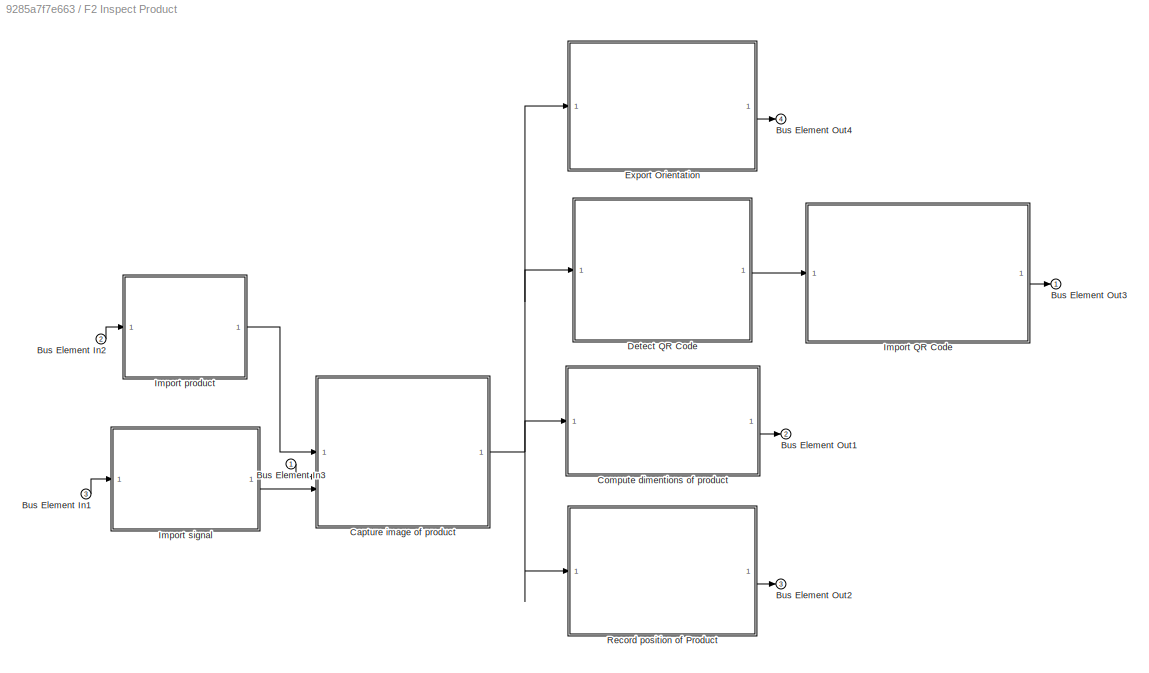
BLOCK [SubSystem] F2 Inspect Product
  PortSchema = {"entries":[{"content":{"headerSize":26,"margin":15,"minimumSpacing":25,"sides":[{"content":{"connectorIds":["In1","In2","In3"]},"type":"ConnectorPlacement.EquallySpacedRectSide","uuid":"0eb90d47-70e1-4803-9acf-c665eca2c33b"},{"content":{"connectorIds":["Out1","Out2","Out3","Out4"],"side":"RIGHT"},"type":"ConnectorPlacement.EquallySpacedRectSide","uuid":"4ca2a7b5-05ae-49c5-bdeb-54cebcfbfa14"},{"co...<+321ch>
BLOCK [Inport] F2 Inspect Product/Bus Element In1
  Port = 3
BLOCK [Inport] F2 Inspect Product/Bus Element In2
  Port = 2
BLOCK [Inport] F2 Inspect Product/Bus Element In3
BLOCK [Outport] F2 Inspect Product/Bus Element Out1
  Port = 2
BLOCK [Outport] F2 Inspect Product/Bus Element Out2
  Port = 3
BLOCK [Outport] F2 Inspect Product/Bus Element Out3
BLOCK [Outport] F2 Inspect Product/Bus Element Out4
  Port = 4
BLOCK [SubSystem] F2 Inspect Product/Capture image of product
  PortSchema = {"entries":[{"content":{"headerSize":26,"margin":15,"minimumSpacing":25,"sides":[{"content":{"connectorIds":["In1","In2","In3"]},"type":"ConnectorPlacement.EquallySpacedRectSide","uuid":"320e88d4-3d78-4d2f-ad02-b343723442c4"},{"content":{"connectorIds":["Out1","Out2","Out3"],"side":"RIGHT"},"type":"ConnectorPlacement.EquallySpacedRectSide","uuid":"09c33032-32ab-4ada-8ed8-0201f1b57dc0"},{"content":...<+314ch>
BLOCK [Inport] F2 Inspect Product/Capture image of product/Bus Element In1
  Port = 2
BLOCK [Inport] F2 Inspect Product/Capture image of product/Bus Element In2
BLOCK [Inport] F2 Inspect Product/Capture image of product/Bus Element In3
  Port = 3
BLOCK [Outport] F2 Inspect Product/Capture image of product/Bus Element Out1
  Port = 2
BLOCK [Outport] F2 Inspect Product/Capture image of product/Bus Element Out2
  Port = 3
BLOCK [Outport] F2 Inspect Product/Capture image of product/Bus Element Out3
BLOCK [SubSystem] F2 Inspect Product/Compute dimentions of product
  PortSchema = {"entries":[{"content":{"headerSize":26,"margin":15,"minimumSpacing":25,"sides":[{"content":{"connectorIds":["In1"]},"type":"ConnectorPlacement.EquallySpacedRectSide","uuid":"320e88d4-3d78-4d2f-ad02-b343723442c4"},{"content":{"connectorIds":["Out1"],"side":"RIGHT"},"type":"ConnectorPlacement.EquallySpacedRectSide","uuid":"09c33032-32ab-4ada-8ed8-0201f1b57dc0"},{"content":{"connectorIds":[],"side":...<+288ch>  <repeated x7 — deduplicated; at blocks: Compute dimentions of product, Compute dimention, get coordinates, Export Orientation, Import product, Import signal, Record position of Product>
BLOCK [Inport] F2 Inspect Product/Compute dimentions of product/Bus Element In1
BLOCK [Outport] F2 Inspect Product/Compute dimentions of product/Bus Element Out1
BLOCK [SubSystem] F2 Inspect Product/Compute dimentions of product/Compute dimention
BLOCK [Inport] F2 Inspect Product/Compute dimentions of product/Compute dimention/Bus Element In1
BLOCK [Outport] F2 Inspect Product/Compute dimentions of product/Compute dimention/Bus Element Out1
BLOCK [SubSystem] F2 Inspect Product/Compute dimentions of product/get coordinates
BLOCK [Inport] F2 Inspect Product/Compute dimentions of product/get coordinates/Bus Element In1
BLOCK [Outport] F2 Inspect Product/Compute dimentions of product/get coordinates/Bus Element Out1
BLOCK [SubSystem] F2 Inspect Product/Detect QR Code
  PortSchema = {"entries":[{"content":{"headerSize":26,"margin":15,"minimumSpacing":25,"sides":[{"content":{"connectorIds":["In1"]},"type":"ConnectorPlacement.EquallySpacedRectSide","uuid":"1c117138-a6d4-4ec0-b7b8-6d1428745998"},{"content":{"connectorIds":["Out1"],"side":"RIGHT"},"type":"ConnectorPlacement.EquallySpacedRectSide","uuid":"426d6ceb-18a6-42d8-9bd7-8fe69cb751f0"},{"content":{"connectorIds":[],"side":...<+288ch>
BLOCK [Inport] F2 Inspect Product/Detect QR Code/Bus Element In1
BLOCK [Outport] F2 Inspect Product/Detect QR Code/Bus Element Out1
BLOCK [SubSystem] F2 Inspect Product/Export Orientation
BLOCK [Inport] F2 Inspect Product/Export Orientation/Bus Element In1
BLOCK [Outport] F2 Inspect Product/Export Orientation/Bus Element Out1
BLOCK [SubSystem] F2 Inspect Product/Import QR Code
  PortSchema = {"entries":[{"content":{"headerSize":26,"margin":15,"minimumSpacing":25,"sides":[{"content":{"connectorIds":["In1"]},"type":"ConnectorPlacement.EquallySpacedRectSide","uuid":"1c117138-a6d4-4ec0-b7b8-6d1428745998"},{"content":{"connectorIds":["Out1"],"side":"RIGHT"},"type":"ConnectorPlacement.EquallySpacedRectSide","uuid":"426d6ceb-18a6-42d8-9bd7-8fe69cb751f0"},{"content":{"connectorIds":[],"side":...<+288ch>
BLOCK [Inport] F2 Inspect Product/Import QR Code/Bus Element In1
BLOCK [Outport] F2 Inspect Product/Import QR Code/Bus Element Out1
BLOCK [SubSystem] F2 Inspect Product/Import product
BLOCK [Inport] F2 Inspect Product/Import product/Bus Element In1
BLOCK [Outport] F2 Inspect Product/Import product/Bus Element Out1
BLOCK [SubSystem] F2 Inspect Product/Import signal
BLOCK [Inport] F2 Inspect Product/Import signal/Bus Element In1
BLOCK [Outport] F2 Inspect Product/Import signal/Bus Element Out1
BLOCK [SubSystem] F2 Inspect Product/Record position of Product
BLOCK [Inport] F2 Inspect Product/Record position of Product/Bus Element In1
BLOCK [Outport] F2 Inspect Product/Record position of Product/Bus Element Out1
BLOCK [SubSystem] F3 Compare Dimensions
BLOCK [Inport] F3 Compare Dimensions/Bus Element In1
BLOCK [Outport] F3 Compare Dimensions/Bus Element Out1
BLOCK [Outport] F3 Compare Dimensions/Bus Element Out2
  Port = 2
BLOCK [SubSystem] F3 Compare Dimensions/F3.1 Import Dimension
BLOCK [Inport] F3 Compare Dimensions/F3.1 Import Dimension/Bus Element In1
BLOCK [Outport] F3 Compare Dimensions/F3.1 Import Dimension/Bus Element Out1
BLOCK [SubSystem] F3 Compare Dimensions/F3.2 Interpret Dimensions
  PortSchema = {"entries":[{"content":{"headerSize":26,"margin":15,"minimumSpacing":25,"sides":[{"content":{"connectorIds":["In1"]},"type":"ConnectorPlacement.EquallySpacedRectSide","uuid":"7013333b-bcb0-472a-8b4b-201a684e0f69"},{"content":{"connectorIds":["Out1","Out2"],"side":"RIGHT"},"type":"ConnectorPlacement.EquallySpacedRectSide","uuid":"4b4cc890-b976-4837-92a8-5b6c4ad3f659"},{"content":{"connectorIds":[],...<+295ch>
BLOCK [Inport] F3 Compare Dimensions/F3.2 Interpret Dimensions/Bus Element In1
BLOCK [Outport] F3 Compare Dimensions/F3.2 Interpret Dimensions/Bus Element Out1
BLOCK [Outport] F3 Compare Dimensions/F3.2 Interpret Dimensions/Bus Element Out2
  Port = 2
BLOCK [SubSystem] F3 Compare Dimensions/F3.3 Request dimensions from DB
BLOCK [Inport] F3 Compare Dimensions/F3.3 Request dimensions from DB/Bus Element In1
BLOCK [Outport] F3 Compare Dimensions/F3.3 Request dimensions from DB/Bus Element Out1
BLOCK [SubSystem] F3 Compare Dimensions/F3.4 Recieve Dimensions from DB
BLOCK [Inport] F3 Compare Dimensions/F3.4 Recieve Dimensions from DB/Bus Element In1
BLOCK [Outport] F3 Compare Dimensions/F3.4 Recieve Dimensions from DB/Bus Element Out1
BLOCK [SubSystem] F3 Compare Dimensions/F3.5 Compare dimensions
  PortSchema = {"entries":[{"content":{"headerSize":26,"margin":15,"minimumSpacing":25,"sides":[{"content":{"connectorIds":["In1","In2"]},"type":"ConnectorPlacement.EquallySpacedRectSide","uuid":"7013333b-bcb0-472a-8b4b-201a684e0f69"},{"content":{"connectorIds":["Out1","Out2"],"side":"RIGHT"},"type":"ConnectorPlacement.EquallySpacedRectSide","uuid":"4b4cc890-b976-4837-92a8-5b6c4ad3f659"},{"content":{"connectorId...<+301ch>
BLOCK [Inport] F3 Compare Dimensions/F3.5 Compare dimensions/Bus Element In1
  Port = 2
BLOCK [Inport] F3 Compare Dimensions/F3.5 Compare dimensions/Bus Element In2
BLOCK [Outport] F3 Compare Dimensions/F3.5 Compare dimensions/Bus Element Out1
BLOCK [Outport] F3 Compare Dimensions/F3.5 Compare dimensions/Bus Element Out2
  Port = 2
BLOCK [SubSystem] F4 Calibrate Systems 
BLOCK [Inport] F4 Calibrate Systems /Bus Element In1
BLOCK [Inport] F4 Calibrate Systems /Bus Element In2
  Port = 2
BLOCK [Inport] F4 Calibrate Systems /Bus Element In3
  Port = 2
BLOCK [Inport] F4 Calibrate Systems /Bus Element In4
  Port = 2
BLOCK [Inport] F4 Calibrate Systems /Bus Element In5
BLOCK [Outport] F4 Calibrate Systems /Bus Element Out1
BLOCK [SubSystem] F4 Calibrate Systems /Import signal
  PortSchema = {"entries":[{"content":{"headerSize":26,"margin":15,"minimumSpacing":25,"sides":[{"content":{"connectorIds":["In1"]},"type":"ConnectorPlacement.EquallySpacedRectSide","uuid":"49603a02-1e4e-4380-a56a-8f37f29afafa"},{"content":{"connectorIds":["Out1"],"side":"RIGHT"},"type":"ConnectorPlacement.EquallySpacedRectSide","uuid":"ee8e367c-9331-4580-a59d-43baf7bfc40b"},{"content":{"connectorIds":[],"side":...<+288ch>
BLOCK [Inport] F4 Calibrate Systems /Import signal/Bus Element In1
BLOCK [Outport] F4 Calibrate Systems /Import signal/Bus Element Out1
BLOCK [SubSystem] F4 Calibrate Systems /Jog Robot
  PortSchema = {"entries":[{"content":{"headerSize":26,"margin":15,"minimumSpacing":25,"sides":[{"content":{"connectorIds":["In1","In2","In3"]},"type":"ConnectorPlacement.EquallySpacedRectSide","uuid":"49603a02-1e4e-4380-a56a-8f37f29afafa"},{"content":{"connectorIds":["Out1"],"side":"RIGHT"},"type":"ConnectorPlacement.EquallySpacedRectSide","uuid":"ee8e367c-9331-4580-a59d-43baf7bfc40b"},{"content":{"connectorIds...<+300ch>
BLOCK [Inport] F4 Calibrate Systems /Jog Robot/Bus Element In1
BLOCK [Inport] F4 Calibrate Systems /Jog Robot/Bus Element In2
  Port = 2
BLOCK [Inport] F4 Calibrate Systems /Jog Robot/Bus Element In3
  Port = 3
BLOCK [Outport] F4 Calibrate Systems /Jog Robot/Bus Element Out1
BLOCK [SubSystem] F4 Calibrate Systems /Physical setup
  PortSchema = {"entries":[{"content":{"headerSize":26,"margin":15,"minimumSpacing":25,"sides":[{"content":{"connectorIds":["In1","In2","In3"]},"type":"ConnectorPlacement.EquallySpacedRectSide","uuid":"49603a02-1e4e-4380-a56a-8f37f29afafa"},{"content":{"connectorIds":["Out1"],"side":"RIGHT"},"type":"ConnectorPlacement.EquallySpacedRectSide","uuid":"ee8e367c-9331-4580-a59d-43baf7bfc40b"},{"content":{"connectorIds...<+300ch>
BLOCK [Inport] F4 Calibrate Systems /Physical setup/Bus Element In1
BLOCK [Inport] F4 Calibrate Systems /Physical setup/Bus Element In2
  Port = 2
BLOCK [Inport] F4 Calibrate Systems /Physical setup/Bus Element In3
  Port = 3
BLOCK [Outport] F4 Calibrate Systems /Physical setup/Bus Element Out1
BLOCK [SubSystem] F4 Calibrate Systems /Physical setup/Frame setup
  PortSchema = {"entries":[{"content":{"headerSize":26,"margin":15,"minimumSpacing":25,"sides":[{"content":{"connectorIds":["In1"]},"type":"ConnectorPlacement.EquallySpacedRectSide","uuid":"49603a02-1e4e-4380-a56a-8f37f29afafa"},{"content":{"connectorIds":["Out1"],"side":"RIGHT"},"type":"ConnectorPlacement.EquallySpacedRectSide","uuid":"ee8e367c-9331-4580-a59d-43baf7bfc40b"},{"content":{"connectorIds":[],"side":...<+288ch>
BLOCK [Inport] F4 Calibrate Systems /Physical setup/Frame setup/Bus Element In1
BLOCK [Outport] F4 Calibrate Systems /Physical setup/Frame setup/Bus Element Out1
BLOCK [SubSystem] F4 Calibrate Systems /Physical setup/Motor setup
  PortSchema = {"entries":[{"content":{"headerSize":26,"margin":15,"minimumSpacing":25,"sides":[{"content":{"connectorIds":["In1","In2"]},"type":"ConnectorPlacement.EquallySpacedRectSide","uuid":"49603a02-1e4e-4380-a56a-8f37f29afafa"},{"content":{"connectorIds":["Out1"],"side":"RIGHT"},"type":"ConnectorPlacement.EquallySpacedRectSide","uuid":"ee8e367c-9331-4580-a59d-43baf7bfc40b"},{"content":{"connectorIds":[],"...<+294ch>  <repeated x3 — deduplicated; at blocks: Motor setup, Power upset, Return to home position>
BLOCK [Inport] F4 Calibrate Systems /Physical setup/Motor setup/Bus Element In1
BLOCK [Inport] F4 Calibrate Systems /Physical setup/Motor setup/Bus Element In2
  Port = 2
BLOCK [Outport] F4 Calibrate Systems /Physical setup/Motor setup/Bus Element Out1
BLOCK [SubSystem] F4 Calibrate Systems /Physical setup/Power upset
BLOCK [Inport] F4 Calibrate Systems /Physical setup/Power upset/Bus Element In1
  Port = 2
BLOCK [Inport] F4 Calibrate Systems /Physical setup/Power upset/Bus Element In2
BLOCK [Outport] F4 Calibrate Systems /Physical setup/Power upset/Bus Element Out1
BLOCK [SubSystem] F4 Calibrate Systems /Return to home position
BLOCK [Inport] F4 Calibrate Systems /Return to home position/Bus Element In1
  Port = 2
BLOCK [Inport] F4 Calibrate Systems /Return to home position/Bus Element In2
BLOCK [Outport] F4 Calibrate Systems /Return to home position/Bus Element Out1
BLOCK [SubSystem] F9 Hold Operations
  PortSchema = {"entries":[{"content":{"headerSize":26,"margin":15,"minimumSpacing":25,"sides":[{"content":{"connectorIds":["In1"]},"type":"ConnectorPlacement.EquallySpacedRectSide","uuid":"0eb90d47-70e1-4803-9acf-c665eca2c33b"},{"content":{"connectorIds":["Out1"],"side":"RIGHT"},"type":"ConnectorPlacement.EquallySpacedRectSide","uuid":"4ca2a7b5-05ae-49c5-bdeb-54cebcfbfa14"},{"content":{"connectorIds":["LConn1"]...<+296ch>
BLOCK [Inport] F9 Hold Operations/Bus Element In1
BLOCK [Outport] F9 Hold Operations/Bus Element Out1
BLOCK [PMIOPort] F9 Hold Operations/Conn1
  Side = Left
BLOCK [SubSystem] F9 Hold Operations/F9.1 Pause Operation
  PortSchema = {"entries":[{"content":{"headerSize":26,"margin":15,"minimumSpacing":25,"sides":[{"content":{"connectorIds":["In1"]},"type":"ConnectorPlacement.EquallySpacedRectSide","uuid":"ee97644e-c9ff-4946-8a58-fee1d557a4ad"},{"content":{"connectorIds":["Out1"],"side":"RIGHT"},"type":"ConnectorPlacement.EquallySpacedRectSide","uuid":"e20fd496-d0ba-45f7-949d-94f28912a261"},{"content":{"connectorIds":[],"side":...<+288ch>
BLOCK [Inport] F9 Hold Operations/F9.1 Pause Operation/Bus Element In1
BLOCK [Outport] F9 Hold Operations/F9.1 Pause Operation/Bus Element Out1
BLOCK [Inport] In Bus Element
  Port = 4
BLOCK [Inport] In Bus Element1
  Port = 3
BLOCK [Inport] In Bus Element2
  Port = 2
BLOCK [Inport] In Bus Element3
BLOCK [Inport] In Bus Element4
  Port = 4
BLOCK [Inport] In Bus Element5
  Port = 3
BLOCK [Inport] In Bus Element6
  Port = 3
LINE Actuate Robot/StopSignalisFalse/Bus Element In1:1 -> Actuate Robot/StopSignalisFalse/F5 Pick Product:3
LINE Actuate Robot/StopSignalisFalse/Bus Element In2:1 -> Actuate Robot/StopSignalisFalse/F5 Pick Product:1
LINE Actuate Robot/StopSignalisFalse/F08 Handle Contingencies/Check Pick Position:1 -> Actuate Robot/StopSignalisFalse/F08 Handle Contingencies/Out Bus Element1:1
LINE Actuate Robot/StopSignalisFalse/F08 Handle Contingencies/F8.1Weak force on the product:1 -> Actuate Robot/StopSignalisFalse/F08 Handle Contingencies/Out Bus Element:1
LINE Actuate Robot/StopSignalisFalse/F08 Handle Contingencies/In Bus Element1:1 -> Actuate Robot/StopSignalisFalse/F08 Handle Contingencies/F8.1Weak force on the product:1
LINE Actuate Robot/StopSignalisFalse/F08 Handle Contingencies/In Bus Element:1 -> Actuate Robot/StopSignalisFalse/F08 Handle Contingencies/Check Pick Position:1
NET Actuate Robot/StopSignalisFalse/F08 Handle Contingencies:1 -> Actuate Robot/StopSignalisFalse/F5 Pick Product:2, Actuate Robot/StopSignalisFalse/F7 Place Product:4
LINE Actuate Robot/StopSignalisFalse/F08 Handle Contingencies:2 -> Actuate Robot/StopSignalisFalse/F5 Pick Product:4
LINE Actuate Robot/StopSignalisFalse/F5 Pick Product/Begin Task:1 -> Actuate Robot/StopSignalisFalse/F5 Pick Product/F5.1 Accept Coordinates:1
LINE Actuate Robot/StopSignalisFalse/F5 Pick Product/Begin Task:2 -> Actuate Robot/StopSignalisFalse/F5 Pick Product/F5.2 Import Orientation of Product:1
LINE Actuate Robot/StopSignalisFalse/F5 Pick Product/Bus Element In2:1 -> Actuate Robot/StopSignalisFalse/F5 Pick Product/F5.4 Check and Verify Force and Position of Gripper:1
LINE Actuate Robot/StopSignalisFalse/F5 Pick Product/Bus Element In3:1 -> Actuate Robot/StopSignalisFalse/F5 Pick Product/F5.4 Check and Verify Force and Position of Gripper:2
LINE Actuate Robot/StopSignalisFalse/F5 Pick Product/Bus Element In4:1 -> Actuate Robot/StopSignalisFalse/F5 Pick Product/Begin Task:1
LINE Actuate Robot/StopSignalisFalse/F5 Pick Product/F5.1 Accept Coordinates:1 -> Actuate Robot/StopSignalisFalse/F5 Pick Product/F5.3 Compute Trajectory:2
LINE Actuate Robot/StopSignalisFalse/F5 Pick Product/F5.2 Import Orientation of Product:1 -> Actuate Robot/StopSignalisFalse/F5 Pick Product/F5.3 Compute Trajectory:3
LINE Actuate Robot/StopSignalisFalse/F5 Pick Product/F5.3 Compute Trajectory:1 -> Actuate Robot/StopSignalisFalse/F5 Pick Product/Bus Element Out3:1
LINE Actuate Robot/StopSignalisFalse/F5 Pick Product/F5.3 Compute Trajectory:2 -> Actuate Robot/StopSignalisFalse/F5 Pick Product/F5.5 Move the Gripper towards Product:1
LINE Actuate Robot/StopSignalisFalse/F5 Pick Product/F5.4 Check and Verify Force and Position of Gripper:1 -> Actuate Robot/StopSignalisFalse/F5 Pick Product/F5.6 Activate Gripper:1
LINE Actuate Robot/StopSignalisFalse/F5 Pick Product/F5.4 Check and Verify Force and Position of Gripper:2 -> Actuate Robot/StopSignalisFalse/F5 Pick Product/F5.3 Compute Trajectory:1
LINE Actuate Robot/StopSignalisFalse/F5 Pick Product/F5.5 Move the Gripper towards Product:1 -> Actuate Robot/StopSignalisFalse/F5 Pick Product/F5.6 Activate Gripper:2
LINE Actuate Robot/StopSignalisFalse/F5 Pick Product/F5.6 Activate Gripper:1 -> Actuate Robot/StopSignalisFalse/F5 Pick Product/Bus Element Out4:1
LINE Actuate Robot/StopSignalisFalse/F5 Pick Product/F5.6 Activate Gripper:2 -> Actuate Robot/StopSignalisFalse/F5 Pick Product/Bus Element Out1:1
NET Actuate Robot/StopSignalisFalse/F5 Pick Product:1 -> Actuate Robot/StopSignalisFalse/F08 Handle Contingencies:1, Actuate Robot/StopSignalisFalse/F7 Place Product:2
LINE Actuate Robot/StopSignalisFalse/F5 Pick Product:2 -> Actuate Robot/StopSignalisFalse/F08 Handle Contingencies:2
LINE Actuate Robot/StopSignalisFalse/F5 Pick Product:3 -> Actuate Robot/StopSignalisFalse/F6 Translate Product:1
LINE Actuate Robot/StopSignalisFalse/F6 Translate Product/Bus Element In1:1 -> Actuate Robot/StopSignalisFalse/F6 Translate Product/F6.1 Move:1
LINE Actuate Robot/StopSignalisFalse/F6 Translate Product/F6.1 Move:1 -> Actuate Robot/StopSignalisFalse/F6 Translate Product/Bus Element Out1:1
LINE Actuate Robot/StopSignalisFalse/F6 Translate Product:1 -> Actuate Robot/StopSignalisFalse/F7 Place Product:3
LINE Actuate Robot/StopSignalisFalse/F7 Place Product/Bus Element In1:1 -> Actuate Robot/StopSignalisFalse/F7 Place Product/F7.2 Lower the Gripper:2
LINE Actuate Robot/StopSignalisFalse/F7 Place Product/Bus Element In2:1 -> Actuate Robot/StopSignalisFalse/F7 Place Product/F7.1 Check and Verify force and position of Gripper:1
LINE Actuate Robot/StopSignalisFalse/F7 Place Product/Bus Element In3:1 -> Actuate Robot/StopSignalisFalse/F7 Place Product/F7.2 Lower the Gripper:1
LINE Actuate Robot/StopSignalisFalse/F7 Place Product/F7.1 Check and Verify force and position of Gripper:1 -> Actuate Robot/StopSignalisFalse/F7 Place Product/F7.2 Lower the Gripper:3
LINE Actuate Robot/StopSignalisFalse/F7 Place Product/F7.2 Lower the Gripper:1 -> Actuate Robot/StopSignalisFalse/F7 Place Product/F7.3 Release the Gripper:1
LINE Actuate Robot/StopSignalisFalse/F7 Place Product/F7.3 Release the Gripper:1 -> Actuate Robot/StopSignalisFalse/F7 Place Product/F7.4 Raise the Gripper:1
LINE Actuate Robot/StopSignalisFalse/F7 Place Product/F7.4 Raise the Gripper:1 -> Actuate Robot/StopSignalisFalse/F7 Place Product/Bus Element Out1:1
LINE Actuate Robot/StopSignalisFalse/F7 Place Product:1 -> Actuate Robot/StopSignalisFalse/Bus Element Out1:1
LINE Actuate Robot:1 -> F11 Handle User Interface:8
LINE Actuate Robot:2 -> F12 Reset Position:1
LINE F1 Detect Product/Bus Element In3:1 -> F1 Detect Product/F1.2 import signal:3
LINE F1 Detect Product/Bus Element In4:1 -> F1 Detect Product/F1.3 Sense Product:1
LINE F1 Detect Product/Bus Element In5:1 -> F1 Detect Product/F1.2 import signal:2
LINE F1 Detect Product/Bus Element In7:1 -> F1 Detect Product/F1.1 Confirm System Calibration:1
LINE F1 Detect Product/F1.1 Confirm System Calibration:1 -> F1 Detect Product/F1.2 import signal:1
LINE F1 Detect Product/F1.2 import signal:1 -> F1 Detect Product/F1.3 Sense Product:2
LINE F1 Detect Product/F1.3 Sense Product:1 -> F1 Detect Product/Bus Element Out2:1
LINE F1 Detect Product/F1.3 Sense Product:2 -> F1 Detect Product/Bus Element Out1:1
LINE F1 Detect Product/F1.3 Sense Product:3 -> F1 Detect Product/Bus Element Out3:1
LINE F1 Detect Product:1 -> F9 Hold Operations:1
LINE F1 Detect Product:2 -> F2 Inspect Product:3
LINE F1 Detect Product:3 -> F11 Handle User Interface:6
LINE F10 Halt Operations/Bus Element In1:1 -> F10 Halt Operations/F10.1 Recieve Button Input:1
LINE F10 Halt Operations/F10.1 Recieve Button Input:1 -> F10 Halt Operations/F10.2 Interpret Input:1
LINE F10 Halt Operations/F10.2 Interpret Input:1 -> F10 Halt Operations/F10.3 Stop Actuators:1
LINE F10 Halt Operations/F10.3 Stop Actuators:1 -> F10 Halt Operations/F10.4 Export Signal:1
LINE F10 Halt Operations/F10.3 Stop Actuators:2 -> F10 Halt Operations/Bus Element Out1:1
LINE F10 Halt Operations/F10.4 Export Signal:1 -> F10 Halt Operations/Bus Element Out2:1
LINE F10 Halt Operations:1 -> F11 Handle User Interface:1
LINE F10 Halt Operations:2 -> Actuate Robot:2
LINE F11 Handle User Interface/Bus Element In1:1 -> F11 Handle User Interface/F11.3 Recieve User Input:2
LINE F11 Handle User Interface/Bus Element In2:1 -> F11 Handle User Interface/F11.2 Turn ON System:1
LINE F11 Handle User Interface/Bus Element In3:1 -> F11 Handle User Interface/F11.5 Recieve Credentials:2
LINE F11 Handle User Interface/Bus Element In4:1 -> F11 Handle User Interface/F11.10 Monitor System Parameters:1
LINE F11 Handle User Interface/Bus Element In5:1 -> F11 Handle User Interface/F11.10 Monitor System Parameters:3
LINE F11 Handle User Interface/Bus Element In6:1 -> F11 Handle User Interface/F11.10 Monitor System Parameters:5
LINE F11 Handle User Interface/Bus Element In7:1 -> F11 Handle User Interface/F11.12Confirm System STOP:2
LINE F11 Handle User Interface/Bus Element In8:1 -> F11 Handle User Interface/F 11.1Notify user (Logout Successful):1
LINE F11 Handle User Interface/F 11.1Notify user (Logout Successful):1 -> F11 Handle User Interface/Bus Element Out3:1
LINE F11 Handle User Interface/F11.10 Monitor System Parameters:1 -> F11 Handle User Interface/F11.11 Notify User:1
LINE F11 Handle User Interface/F11.10 Monitor System Parameters:2 -> F11 Handle User Interface/F11.15 Display System Parameters:1
LINE F11 Handle User Interface/F11.12Confirm System STOP:1 -> F11 Handle User Interface/Bus Element Out6:1
LINE F11 Handle User Interface/F11.13 Generate STOP Signal:1 -> F11 Handle User Interface/Bus Element Out2:1
LINE F11 Handle User Interface/F11.14 Update Activity Log:1 -> F11 Handle User Interface/F11.12Confirm System STOP:1
LINE F11 Handle User Interface/F11.14 Update Activity Log:2 -> F11 Handle User Interface/F11.13 Generate STOP Signal:1
LINE F11 Handle User Interface/F11.15 Display System Parameters:1 -> F11 Handle User Interface/Bus Element Out5:1
LINE F11 Handle User Interface/F11.15 Display System Parameters:2 -> F11 Handle User Interface/F11.14 Update Activity Log:1
LINE F11 Handle User Interface/F11.15 Display System Parameters:3 -> F11 Handle User Interface/F11.10 Monitor System Parameters:4
LINE F11 Handle User Interface/F11.2 Turn ON System:1 -> F11 Handle User Interface/F11.3 Recieve User Input:1
LINE F11 Handle User Interface/F11.3 Recieve User Input:1 -> F11 Handle User Interface/F11.4 Provide User Interface:1
LINE F11 Handle User Interface/F11.4 Provide User Interface:1 -> F11 Handle User Interface/F11.5 Recieve Credentials:1
LINE F11 Handle User Interface/F11.5 Recieve Credentials:1 -> F11 Handle User Interface/F11.6 Verify Credentials:1
LINE F11 Handle User Interface/F11.6 Verify Credentials:1 -> F11 Handle User Interface/F11.7 Confirm Login:1
LINE F11 Handle User Interface/F11.7 Confirm Login:1 -> F11 Handle User Interface/Bus Element Out4:1
LINE F11 Handle User Interface/F11.7 Confirm Login:2 -> F11 Handle User Interface/F11.8 Provide System Dashboard:1
LINE F11 Handle User Interface/F11.8 Provide System Dashboard:1 -> F11 Handle User Interface/F11.10 Monitor System Parameters:2
LINE F11 Handle User Interface:4 -> F12 Reset Position:2
LINE F11 Handle User Interface:5 -> F4 Calibrate Systems :1
LINE F12 Reset Position/Bus Element In1:1 -> F12 Reset Position/F12.1 Obtain the coordinates of home position:1
LINE F12 Reset Position/F12.1 Obtain the coordinates of home position:1 -> F12 Reset Position/F12.2 Go to home:1
LINE F12 Reset Position/F12.2 Go to home:1 -> F12 Reset Position/F12.4Hold the end effector at home position:1
LINE F12 Reset Position/F12.2 Go to home:2 -> F12 Reset Position/F12.3 Freeze the actuators:1
LINE F12 Reset Position/F12.3 Freeze the actuators:1 -> F12 Reset Position/Out Bus Element1:1
LINE F12 Reset Position/In Bus Element1:1 -> F12 Reset Position/F12.1 Obtain the coordinates of home position:2
NET F12 Reset Position:1 -> F1 Detect Product:3, F11 Handle User Interface:7
LINE F2 Inspect Product/Bus Element In1:1 -> F2 Inspect Product/Import signal:1
LINE F2 Inspect Product/Bus Element In2:1 -> F2 Inspect Product/Import product:1
LINE F2 Inspect Product/Bus Element In3:1 -> F2 Inspect Product/Capture image of product:2
NET F2 Inspect Product/Capture image of product:1 -> F2 Inspect Product/Compute dimentions of product:1, F2 Inspect Product/Detect QR Code:1, F2 Inspect Product/Export Orientation:1, F2 Inspect Product/Record position of Product:1
LINE F2 Inspect Product/Compute dimentions of product/Bus Element In1:1 -> F2 Inspect Product/Compute dimentions of product/get coordinates:1
LINE F2 Inspect Product/Compute dimentions of product/Compute dimention:1 -> F2 Inspect Product/Compute dimentions of product/Bus Element Out1:1
LINE F2 Inspect Product/Compute dimentions of product/get coordinates:1 -> F2 Inspect Product/Compute dimentions of product/Compute dimention:1
LINE F2 Inspect Product/Compute dimentions of product:1 -> F2 Inspect Product/Bus Element Out1:1
LINE F2 Inspect Product/Detect QR Code:1 -> F2 Inspect Product/Import QR Code:1
LINE F2 Inspect Product/Export Orientation:1 -> F2 Inspect Product/Bus Element Out4:1
LINE F2 Inspect Product/Import QR Code:1 -> F2 Inspect Product/Bus Element Out3:1
LINE F2 Inspect Product/Import product:1 -> F2 Inspect Product/Capture image of product:1
LINE F2 Inspect Product/Import signal:1 -> F2 Inspect Product/Capture image of product:3
LINE F2 Inspect Product/Record position of Product:1 -> F2 Inspect Product/Bus Element Out2:1
LINE F2 Inspect Product:2 -> F3 Compare Dimensions:1
LINE F3 Compare Dimensions/Bus Element In1:1 -> F3 Compare Dimensions/F3.1 Import Dimension:1
LINE F3 Compare Dimensions/F3.1 Import Dimension:1 -> F3 Compare Dimensions/F3.2 Interpret Dimensions:1
LINE F3 Compare Dimensions/F3.2 Interpret Dimensions:1 -> F3 Compare Dimensions/F3.3 Request dimensions from DB:1
LINE F3 Compare Dimensions/F3.2 Interpret Dimensions:2 -> F3 Compare Dimensions/F3.5 Compare dimensions:2
LINE F3 Compare Dimensions/F3.3 Request dimensions from DB:1 -> F3 Compare Dimensions/F3.4 Recieve Dimensions from DB:1
LINE F3 Compare Dimensions/F3.4 Recieve Dimensions from DB:1 -> F3 Compare Dimensions/F3.5 Compare dimensions:1
LINE F3 Compare Dimensions/F3.5 Compare dimensions:1 -> F3 Compare Dimensions/Bus Element Out1:1
LINE F3 Compare Dimensions/F3.5 Compare dimensions:2 -> F3 Compare Dimensions/Bus Element Out2:1
LINE F3 Compare Dimensions:1 -> F11 Handle User Interface:5
LINE F3 Compare Dimensions:2 -> Actuate Robot:3
LINE F4 Calibrate Systems /Bus Element In2:1 -> F4 Calibrate Systems /Jog Robot:1
LINE F4 Calibrate Systems /Bus Element In3:1 -> F4 Calibrate Systems /Return to home position:1
LINE F4 Calibrate Systems /Bus Element In4:1 -> F4 Calibrate Systems /Physical setup:3
LINE F4 Calibrate Systems /Bus Element In5:1 -> F4 Calibrate Systems /Import signal:1
LINE F4 Calibrate Systems /Import signal:1 -> F4 Calibrate Systems /Jog Robot:3
LINE F4 Calibrate Systems /Jog Robot:1 -> F4 Calibrate Systems /Return to home position:2
LINE F4 Calibrate Systems /Physical setup/Bus Element In1:1 -> F4 Calibrate Systems /Physical setup/Frame setup:1
LINE F4 Calibrate Systems /Physical setup/Bus Element In2:1 -> F4 Calibrate Systems /Physical setup/Motor setup:2
LINE F4 Calibrate Systems /Physical setup/Bus Element In3:1 -> F4 Calibrate Systems /Physical setup/Power upset:1
LINE F4 Calibrate Systems /Physical setup/Frame setup:1 -> F4 Calibrate Systems /Physical setup/Motor setup:1
LINE F4 Calibrate Systems /Physical setup/Motor setup:1 -> F4 Calibrate Systems /Physical setup/Power upset:2
LINE F4 Calibrate Systems /Physical setup/Power upset:1 -> F4 Calibrate Systems /Physical setup/Bus Element Out1:1
LINE F4 Calibrate Systems /Physical setup:1 -> F4 Calibrate Systems /Jog Robot:2
LINE F4 Calibrate Systems /Return to home position:1 -> F4 Calibrate Systems /Bus Element Out1:1
LINE F4 Calibrate Systems :1 -> F1 Detect Product:4
LINE F9 Hold Operations/Bus Element In1:1 -> F9 Hold Operations/F9.1 Pause Operation:1
LINE F9 Hold Operations/F9.1 Pause Operation:1 -> F9 Hold Operations/Bus Element Out1:1
LINE F9 Hold Operations:1 -> F1 Detect Product:2
LINE In Bus Element1:1 -> F11 Handle User Interface:4
LINE In Bus Element2:1 -> F11 Handle User Interface:2
LINE In Bus Element3:1 -> F1 Detect Product:1
LINE In Bus Element4:1 -> F10 Halt Operations:1
LINE In Bus Element5:1 -> F4 Calibrate Systems :2
LINE In Bus Element6:1 -> Actuate Robot:1
LINE In Bus Element:1 -> F11 Handle User Interface:3
note: NET lines group one-source signal fan-out (src -> all destinations, sorted); 1:1 wires keep LINE
